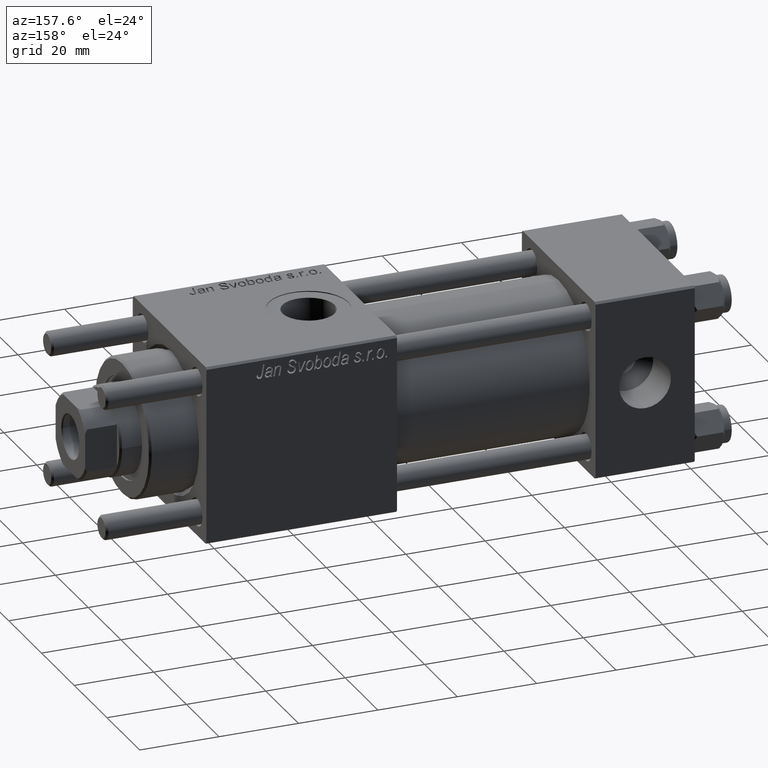
[diagram: clean part render]
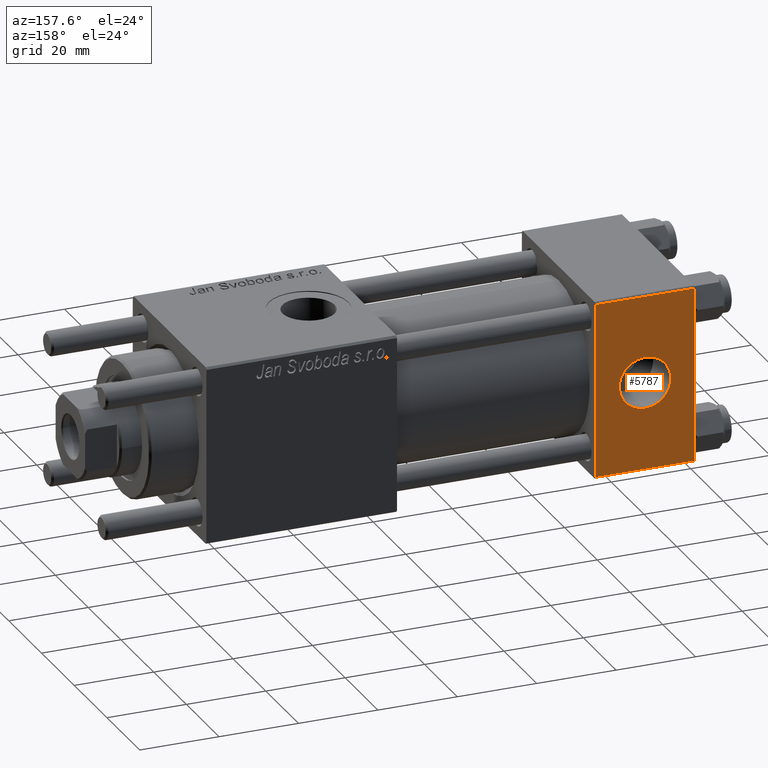
[diagram: same view with one face highlighted and labeled with its STEP entity id]
A machine part, auxiliary view. The second image highlights one B-rep face of the part: STEP entity #5787.
In plain terms, the highlighted planar face has unit normal (0, 1, 0).
Its self-contained STEP definition (entity closure, byte-faithful):
#633 = CARTESIAN_POINT ( 'NONE',  ( 12.50000000000000000, 22.50000000000000000, 0.000000000000000000 ) ) ;
#1789 = AXIS2_PLACEMENT_3D ( 'NONE', #633, #35662, #50206 ) ;
#1828 = DIRECTION ( 'NONE',  ( -0.000000000000000000, 1.000000000000000000, 0.000000000000000000 ) ) ;
#2667 = CARTESIAN_POINT ( 'NONE',  ( 25.00000000000000000, 22.50000000000000000, 22.50000000000000355 ) ) ;
#3967 = ORIENTED_EDGE ( 'NONE', *, *, #35505, .T. ) ;
#4814 = VERTEX_POINT ( 'NONE', #12951 ) ;
#5787 = ADVANCED_FACE ( 'NONE', ( #6977, #28508 ), #23622, .T. ) ;
#6354 = DIRECTION ( 'NONE',  ( 0.000000000000000000, 0.000000000000000000, 1.000000000000000000 ) ) ;
#6977 = FACE_BOUND ( 'NONE', #23626, .T. ) ;
#9202 = DIRECTION ( 'NONE',  ( 0.000000000000000000, 0.000000000000000000, -1.000000000000000000 ) ) ;
#10492 = CARTESIAN_POINT ( 'NONE',  ( 12.50000000000000000, 22.50000000000000000, 6.499999999999998224 ) ) ;
#12135 = ORIENTED_EDGE ( 'NONE', *, *, #36561, .F. ) ;
#12951 = CARTESIAN_POINT ( 'NONE',  ( 0.000000000000000000, 22.50000000000000000, -21.99999999999996803 ) ) ;
#12961 = DIRECTION ( 'NONE',  ( 0.000000000000000000, 0.000000000000000000, -1.000000000000000000 ) ) ;
#14256 = ORIENTED_EDGE ( 'NONE', *, *, #18505, .T. ) ;
#15177 = LINE ( 'NONE', #33573, #37101 ) ;
#16853 = VECTOR ( 'NONE', #9202, 1000.000000000000000 ) ;
#17758 = LINE ( 'NONE', #22370, #16853 ) ;
#18505 = EDGE_CURVE ( 'NONE', #26791, #4814, #15177, .T. ) ;
#18657 = DIRECTION ( 'NONE',  ( 0.000000000000000000, 1.000000000000000000, 0.000000000000000000 ) ) ;
#22370 = CARTESIAN_POINT ( 'NONE',  ( 0.000000000000000000, 22.50000000000000000, 22.50000000000000355 ) ) ;
#23622 = PLANE ( 'NONE',  #40213 ) ;
#23626 = EDGE_LOOP ( 'NONE', ( #32567, #38262 ) ) ;
#25881 = CARTESIAN_POINT ( 'NONE',  ( 25.00000000000000000, 22.50000000000000000, 22.50000000000000355 ) ) ;
#26791 = VERTEX_POINT ( 'NONE', #44497 ) ;
#27595 = CARTESIAN_POINT ( 'NONE',  ( 12.50000000000000000, 22.50000000000000000, 0.000000000000000000 ) ) ;
#27878 = CIRCLE ( 'NONE', #49884, 6.499999999999998224 ) ;
#27879 = CARTESIAN_POINT ( 'NONE',  ( 25.00000000000000000, 22.50000000000000000, 21.99999999999999645 ) ) ;
#28508 = FACE_OUTER_BOUND ( 'NONE', #49707, .T. ) ;
#28524 = VERTEX_POINT ( 'NONE', #53537 ) ;
#28960 = VERTEX_POINT ( 'NONE', #55163 ) ;
#31585 = VECTOR ( 'NONE', #12961, 1000.000000000000000 ) ;
#32043 = CIRCLE ( 'NONE', #1789, 6.499999999999998224 ) ;
#32567 = ORIENTED_EDGE ( 'NONE', *, *, #44883, .F. ) ;
#33573 = CARTESIAN_POINT ( 'NONE',  ( 25.00000000000000000, 22.50000000000000000, -21.99999999999998224 ) ) ;
#34233 = VECTOR ( 'NONE', #41108, 1000.000000000000000 ) ;
#35505 = EDGE_CURVE ( 'NONE', #28524, #26791, #55201, .T. ) ;
#35662 = DIRECTION ( 'NONE',  ( 0.000000000000000000, 1.000000000000000000, 0.000000000000000000 ) ) ;
#36561 = EDGE_CURVE ( 'NONE', #48840, #4814, #17758, .T. ) ;
#37101 = VECTOR ( 'NONE', #50245, 1000.000000000000000 ) ;
#37247 = CARTESIAN_POINT ( 'NONE',  ( 0.000000000000000000, 22.50000000000000000, 21.99999999999999645 ) ) ;
#38262 = ORIENTED_EDGE ( 'NONE', *, *, #53845, .F. ) ;
#40213 = AXIS2_PLACEMENT_3D ( 'NONE', #2667, #1828, #55203 ) ;
#40830 = ORIENTED_EDGE ( 'NONE', *, *, #51354, .T. ) ;
#41108 = DIRECTION ( 'NONE',  ( 1.000000000000000000, 0.000000000000000000, 0.000000000000000000 ) ) ;
#42216 = LINE ( 'NONE', #27879, #34233 ) ;
#44497 = CARTESIAN_POINT ( 'NONE',  ( 25.00000000000000000, 22.50000000000000000, -21.99999999999996803 ) ) ;
#44883 = EDGE_CURVE ( 'NONE', #49807, #28960, #32043, .T. ) ;
#48840 = VERTEX_POINT ( 'NONE', #37247 ) ;
#49707 = EDGE_LOOP ( 'NONE', ( #3967, #14256, #12135, #40830 ) ) ;
#49807 = VERTEX_POINT ( 'NONE', #10492 ) ;
#49884 = AXIS2_PLACEMENT_3D ( 'NONE', #27595, #18657, #6354 ) ;
#50206 = DIRECTION ( 'NONE',  ( 0.000000000000000000, 0.000000000000000000, 1.000000000000000000 ) ) ;
#50245 = DIRECTION ( 'NONE',  ( -1.000000000000000000, 0.000000000000000000, 0.000000000000000000 ) ) ;
#51354 = EDGE_CURVE ( 'NONE', #48840, #28524, #42216, .T. ) ;
#53537 = CARTESIAN_POINT ( 'NONE',  ( 25.00000000000000000, 22.50000000000000000, 21.99999999999999645 ) ) ;
#53845 = EDGE_CURVE ( 'NONE', #28960, #49807, #27878, .T. ) ;
#55163 = CARTESIAN_POINT ( 'NONE',  ( 12.50000000000000000, 22.50000000000000000, -6.499999999999998224 ) ) ;
#55201 = LINE ( 'NONE', #25881, #31585 ) ;
#55203 = DIRECTION ( 'NONE',  ( 0.000000000000000000, -0.000000000000000000, 1.000000000000000000 ) ) ;